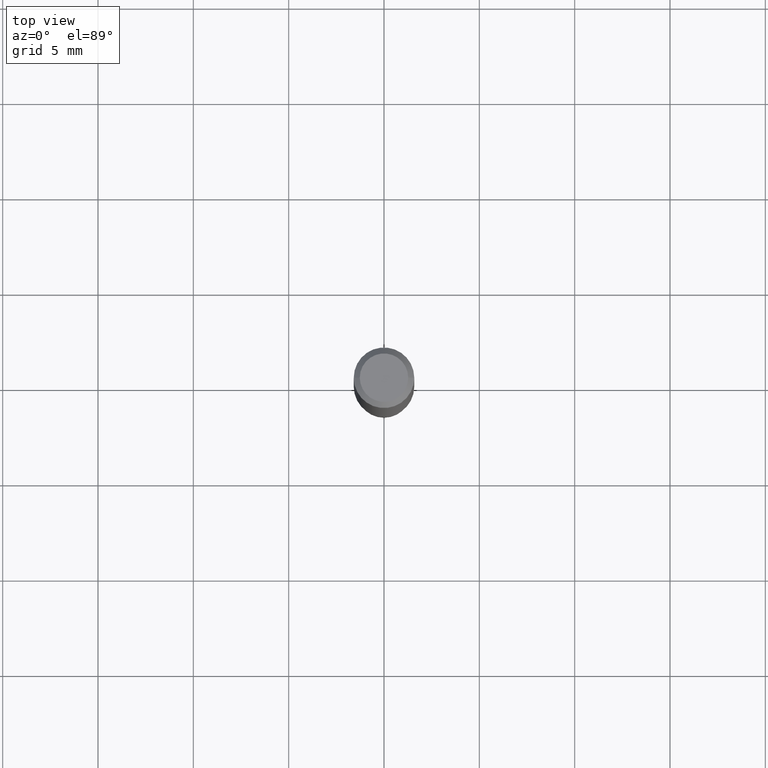
[diagram: clean part render]
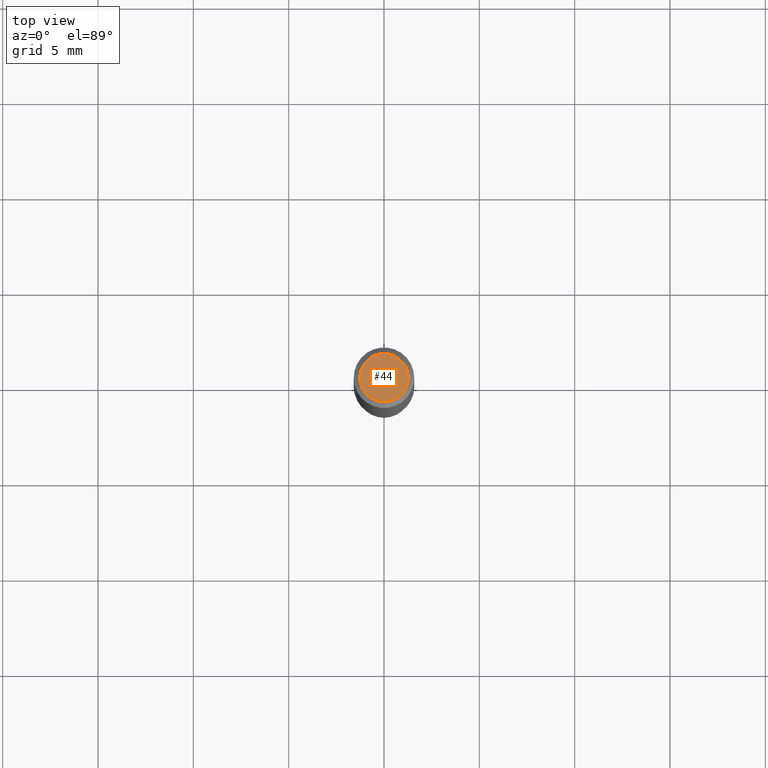
[diagram: same view with one face highlighted and labeled with its STEP entity id]
A machine part, top view. The second image highlights one B-rep face of the part: STEP entity #44.
In plain terms, the highlighted planar face has unit normal (0, -0, -1).
Its self-contained STEP definition (entity closure, byte-faithful):
#24 = CIRCLE ( 'NONE', #116, 0.04999999999999999584 ) ;
#35 = DIRECTION ( 'NONE',  ( 2.438088387897960049E-29, -3.491481338843145188E-15, -1.000000000000000000 ) ) ;
#38 = EDGE_CURVE ( 'NONE', #257, #212, #46, .T. ) ;
#39 = CARTESIAN_POINT ( 'NONE',  ( 1.946643104841063088E-47, -2.779290439833033990E-33, -7.960204194457798443E-19 ) ) ;
#44 = ADVANCED_FACE ( 'NONE', ( #266 ), #343, .F. ) ;
#46 = CIRCLE ( 'NONE', #400, 0.04999999999999999584 ) ;
#116 = AXIS2_PLACEMENT_3D ( 'NONE', #315, #464, #354 ) ;
#165 = EDGE_CURVE ( 'NONE', #212, #257, #24, .T. ) ;
#187 = CARTESIAN_POINT ( 'NONE',  ( 3.893286209682126177E-47, -5.558580879666067980E-33, -1.592040838891559689E-18 ) ) ;
#212 = VERTEX_POINT ( 'NONE', #276 ) ;
#250 = EDGE_LOOP ( 'NONE', ( #374, #389 ) ) ;
#257 = VERTEX_POINT ( 'NONE', #391 ) ;
#266 = FACE_OUTER_BOUND ( 'NONE', #250, .T. ) ;
#276 = CARTESIAN_POINT ( 'NONE',  ( -0.04999999999999999584, 3.709698922520826725E-16, -1.592040838894077649E-18 ) ) ;
#315 = CARTESIAN_POINT ( 'NONE',  ( 3.893286209682126177E-47, -5.558580879666067980E-33, -1.592040838891559689E-18 ) ) ;
#323 = AXIS2_PLACEMENT_3D ( 'NONE', #39, #35, #382 ) ;
#343 = PLANE ( 'NONE',  #323 ) ;
#354 = DIRECTION ( 'NONE',  ( 1.000000000000000000, -6.982962677686265922E-15, 4.875957971899673662E-29 ) ) ;
#374 = ORIENTED_EDGE ( 'NONE', *, *, #165, .T. ) ;
#380 = DIRECTION ( 'NONE',  ( 1.000000000000000000, -6.982962677686265922E-15, 4.875957971899673662E-29 ) ) ;
#382 = DIRECTION ( 'NONE',  ( -1.000000000000000000, 6.982962677686265922E-15, -4.876176775795935793E-29 ) ) ;
#389 = ORIENTED_EDGE ( 'NONE', *, *, #38, .T. ) ;
#391 = CARTESIAN_POINT ( 'NONE',  ( 0.04999999999999999584, -4.077247707424184212E-16, -1.592040838888913461E-18 ) ) ;
#400 = AXIS2_PLACEMENT_3D ( 'NONE', #187, #417, #380 ) ;
#417 = DIRECTION ( 'NONE',  ( -2.445468806185136597E-29, 3.491481338843145583E-15, 1.000000000000000000 ) ) ;
#464 = DIRECTION ( 'NONE',  ( -2.445468806185136597E-29, 3.491481338843145583E-15, 1.000000000000000000 ) ) ;